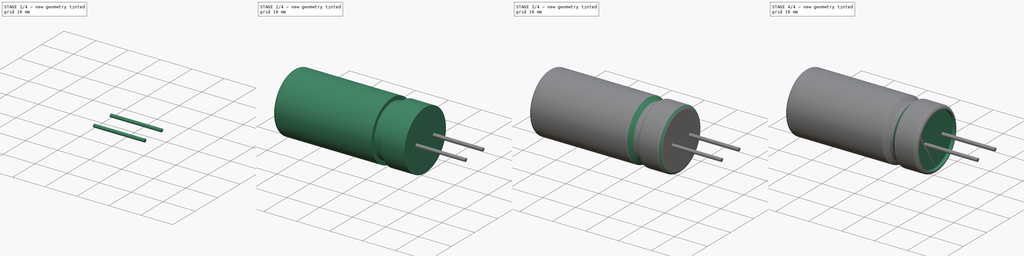
[diagram: build sequence overview — one tinted view per stage of 4, left to right]
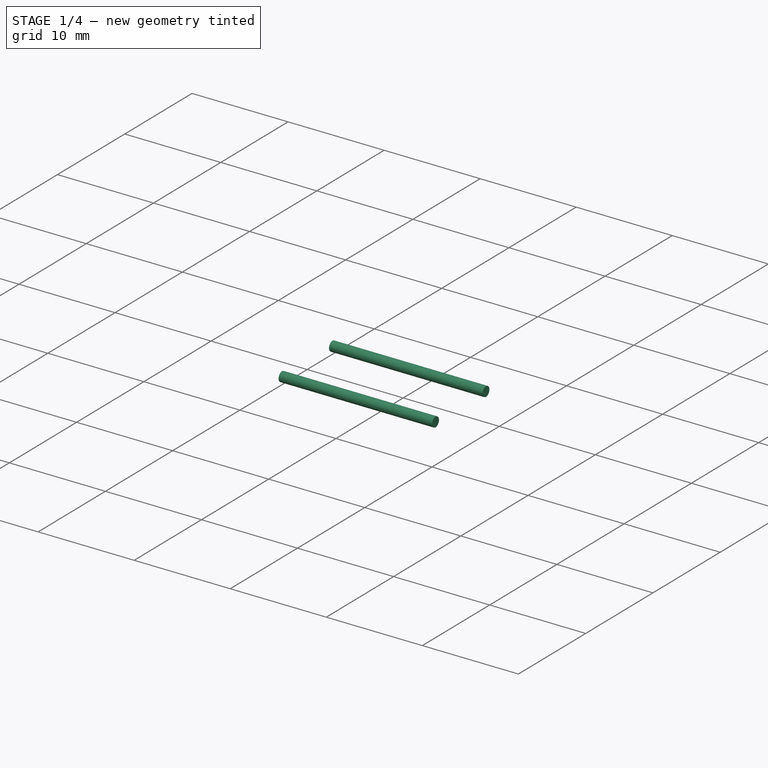
[diagram: stage 1 of 4 — iso view after this stage's code; geometry added in this stage tinted green]
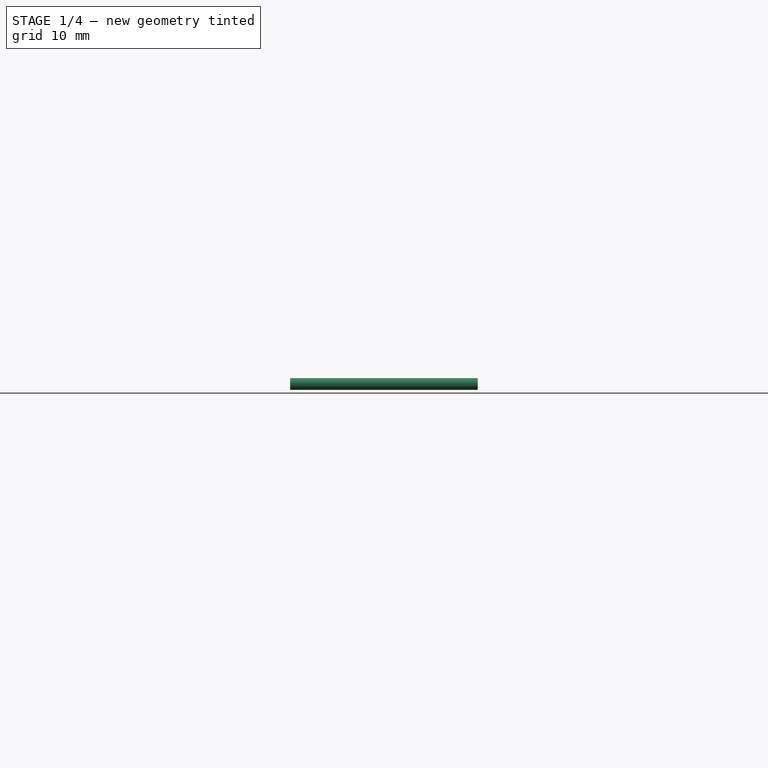
[diagram: stage 1 of 4 — front view after this stage's code; geometry added in this stage tinted green]
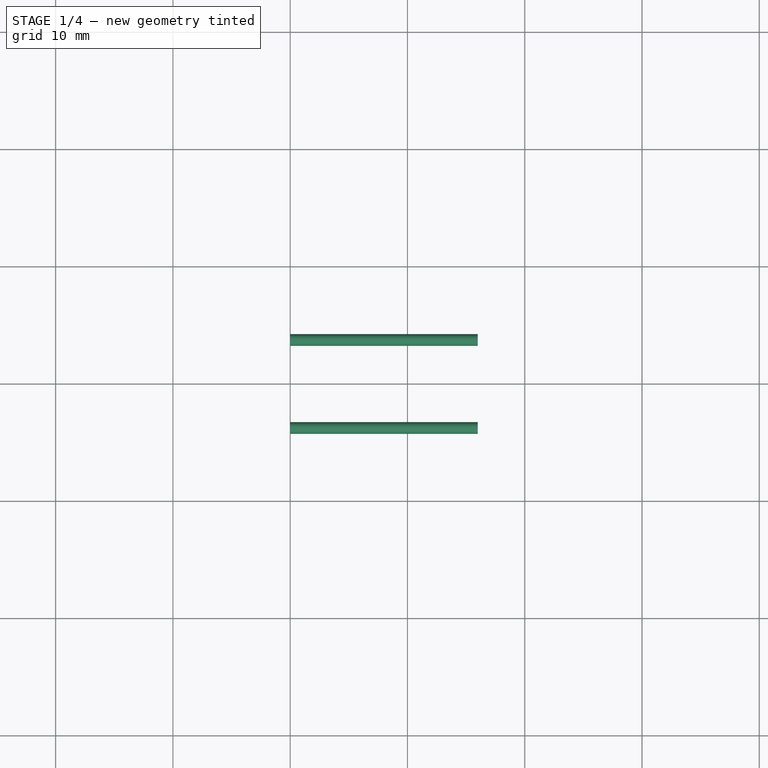
[diagram: stage 1 of 4 — top view after this stage's code; geometry added in this stage tinted green]
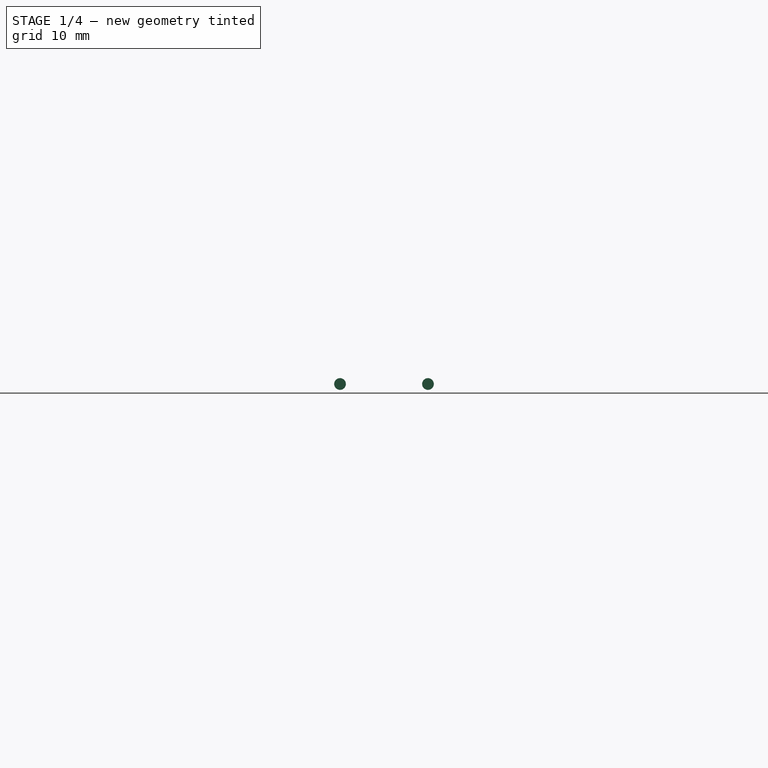
[diagram: stage 1 of 4 — right view after this stage's code; geometry added in this stage tinted green]
FCSTD DOCUMENT  (FreeCAD 1.0R39319 (Git))
Label: condesator(K50 –6 )
License: All rights reserved
LicenseURL: https://en.wikipedia.org/wiki/All_rights_reserved
objects: PartDesign::Fillet×3, PartDesign::Body×3, PartDesign::Chamfer×2, PartDesign::AdditiveCylinder×2, Sketcher::SketchObject×1, PartDesign::Revolution×1, PartDesign::Pocket×1
note: 32 computed .brp shape members not serialized (recipe doc carries the construction recipe); baked Part::Feature solids carry a one-line shape summary decoded from their .brp

FEATURE [PartDesign::Body] Body  label="Тіло"
  AllowCompound = false
  Group = -> [Sketch,Revolution,Fillet,Fillet001,Fillet002,Chamfer,Chamfer001,Pocket]
  Origin = -> Origin
  Tip = -> Pocket
FEATURE [PartDesign::AdditiveCylinder] Cylinder
  Angle = 360
  AttacherType = Attacher::AttachEngine3D
  AttachmentOffset = pos=(0,-3.75,0) rot=(0,0,1;0rad)
  AttachmentSupport = -> [Pocket]
  FirstAngle = 0
  Height = 16
  MapMode = 5
  Placement = pos=(40,3.75,0) rot=(0.707107,0,0.707107;3.14159rad)
  Radius = 0.5
  Refine = true
  SecondAngle = 0
  Suppressed = false
FEATURE [PartDesign::Body] Body001  label="Тіло001"
  AllowCompound = false
  Group = -> [Cylinder]
  Origin = -> Origin001
  Tip = -> Cylinder
FEATURE [PartDesign::AdditiveCylinder] Cylinder001
  Angle = 360
  AttacherType = Attacher::AttachEngine3D
  AttachmentOffset = pos=(0,3.75,0) rot=(0,0,1;0rad)
  AttachmentSupport = -> [Pocket]
  FirstAngle = 0
  Height = 16
  MapMode = 5
  Placement = pos=(40,-3.75,0) rot=(0.707107,0,0.707107;3.14159rad)
  Radius = 0.5
  Refine = true
  SecondAngle = 0
  Suppressed = false
FEATURE [PartDesign::Body] Body002  label="Тіло002"
  AllowCompound = false
  Group = -> [Cylinder001]
  Origin = -> Origin002
  Tip = -> Cylinder001
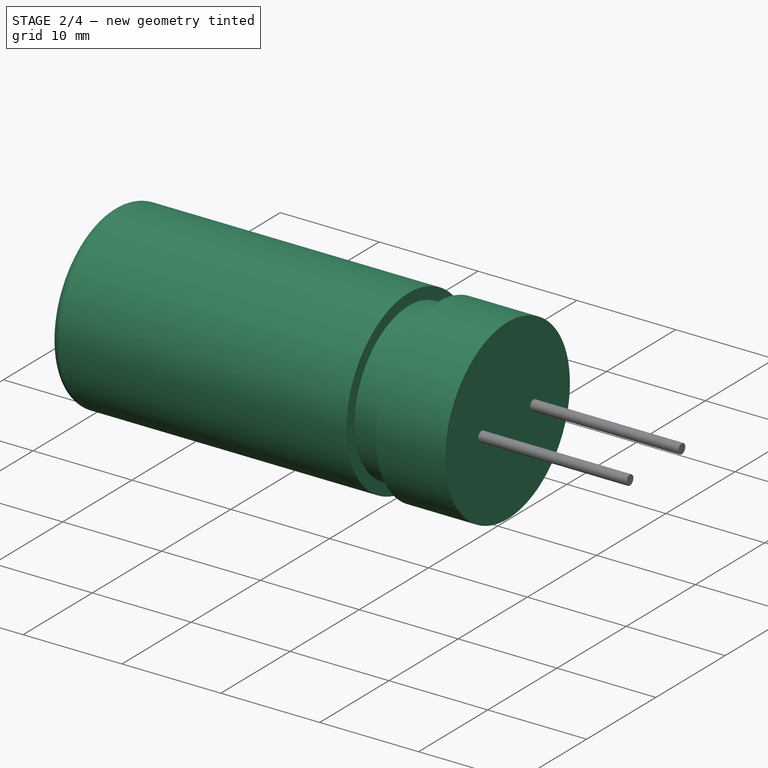
[diagram: stage 2 of 4 — iso view after this stage's code; geometry added in this stage tinted green]
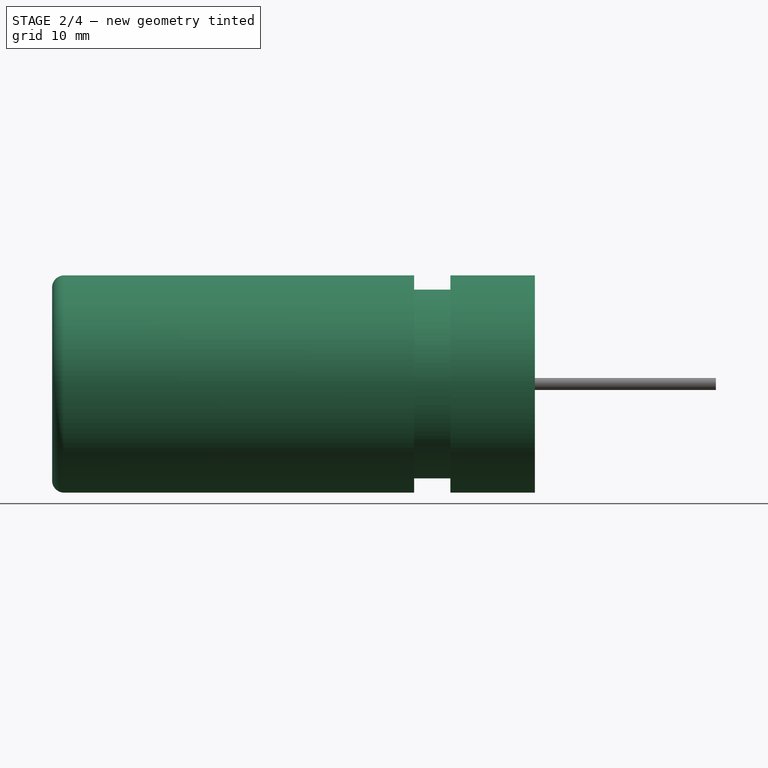
[diagram: stage 2 of 4 — front view after this stage's code; geometry added in this stage tinted green]
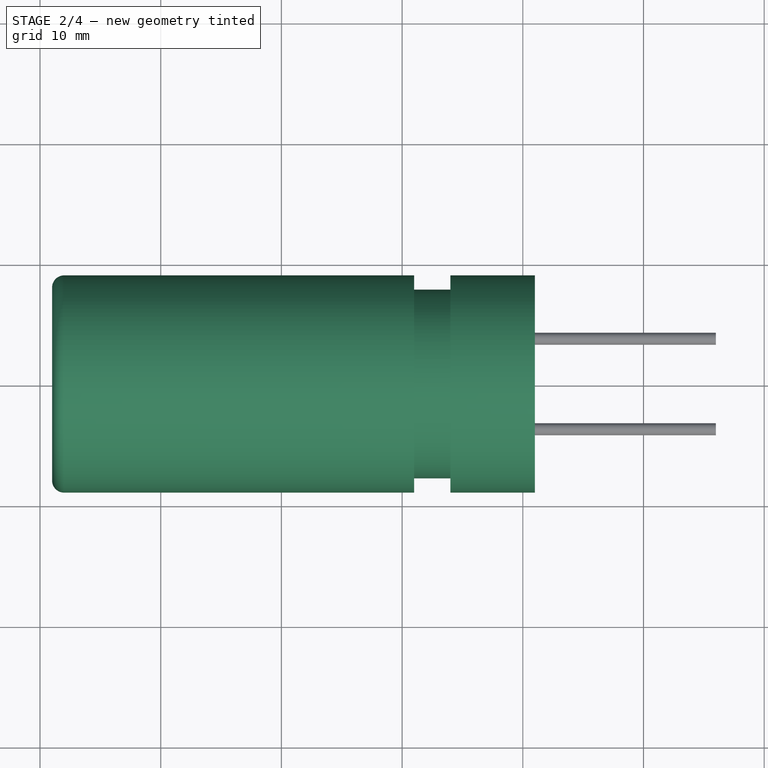
[diagram: stage 2 of 4 — top view after this stage's code; geometry added in this stage tinted green]
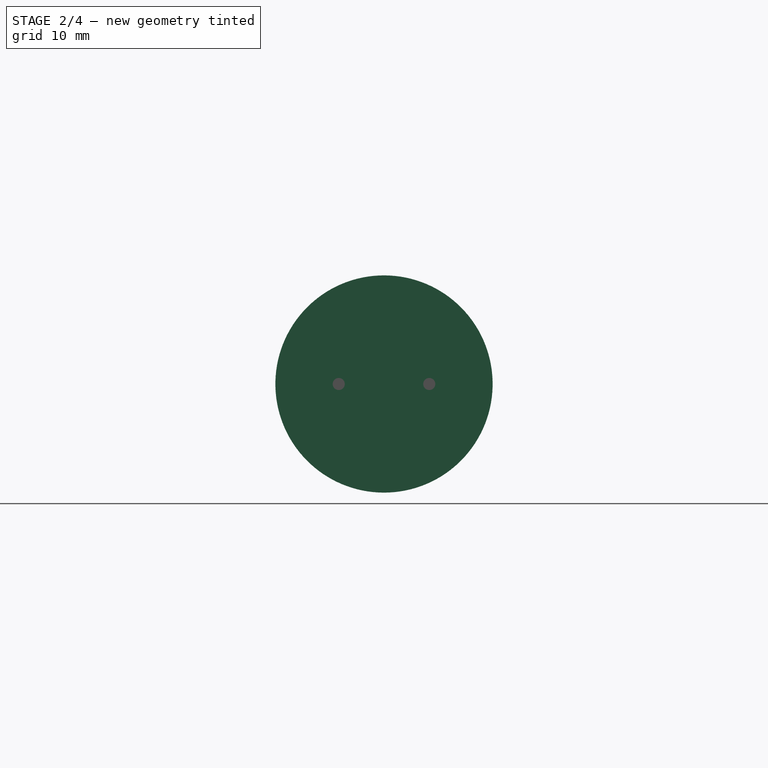
[diagram: stage 2 of 4 — right view after this stage's code; geometry added in this stage tinted green]
FEATURE [Sketcher::SketchObject] Sketch
  ArcFitTolerance = 1e-06
  AttachmentSupport = -> [XZ_Plane]
  FullyConstrained = false
  MakeInternals = false
  MapMode = 5
  Placement = pos=(0,0,0) rot=(1,0,0;1.5708rad)
  sketch-geometry (10):
    g0: LineSegment StartX=1 StartY=0 StartZ=0 EndX=1 EndY=9 EndZ=0
    g1: LineSegment StartX=1 StartY=0 StartZ=0 EndX=31 EndY=0 EndZ=0
    g2: LineSegment StartX=41 StartY=0 StartZ=0 EndX=34 EndY=0 EndZ=0
    g3: LineSegment StartX=31 StartY=0 StartZ=0 EndX=34 EndY=0 EndZ=0
    g4: LineSegment StartX=41 StartY=0 StartZ=0 EndX=41 EndY=9 EndZ=0
    g5: LineSegment StartX=34 StartY=9 StartZ=0 EndX=41 EndY=9 EndZ=0
    g6: LineSegment StartX=31 StartY=9 StartZ=0 EndX=1 EndY=9 EndZ=0
    g7: LineSegment StartX=31 StartY=7.82043 StartZ=0 EndX=34 EndY=7.82043 EndZ=0
    g8: LineSegment StartX=34 StartY=9 StartZ=0 EndX=34 EndY=7.82043 EndZ=0
    g9: LineSegment StartX=31 StartY=9 StartZ=0 EndX=31 EndY=7.82043 EndZ=0
  constraints (16):
    c: Distance(g0) = 9
    c: Vertical(g0)
    c: Distance(g1) = 30
    c: Distance(g2) = 7
    c: Coincident(g3,g2)
    c: Distance(g4) = 9
    c: Vertical(g4)
    c: Coincident(g5,g4)
    c: Coincident(g6,g0)
    c: Horizontal(g7)
    c: Coincident(g8,g5)
    c: Coincident(g8,g7)
    c: Vertical(g8)
    c: Coincident(g9,g6)
    c: Coincident(g9,g7)
    c: Vertical(g9)
FEATURE [PartDesign::Revolution] Revolution
  Angle = 360
  Angle2 = 60
  Axis = (1,0,0)
  Base = (0,0,0)
  Placement = pos=(0,0,0) rot=(1,0,0;1.5708rad)
  Profile = -> Sketch
  ReferenceAxis = -> X_Axis
  Refine = true
  Suppressed = false
  Type = 0
FEATURE [PartDesign::Fillet] Fillet
  Base = -> Revolution [Edge1]
  BaseFeature = -> Revolution
  Placement = pos=(0,0,0) rot=(1,0,0;1.5708rad)
  Radius = 1
  Refine = true
  SupportTransform = false
  Suppressed = false
  UseAllEdges = false
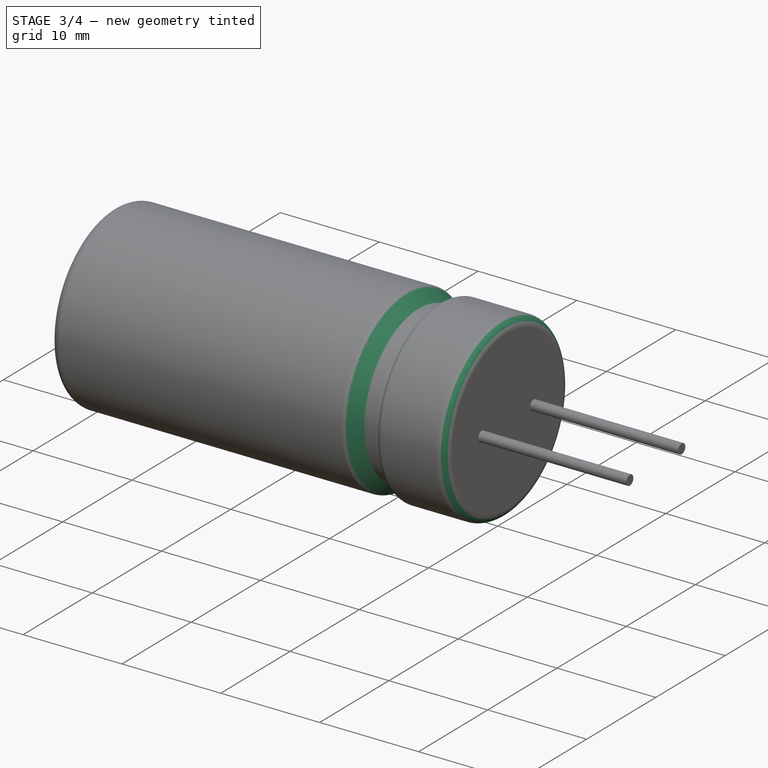
[diagram: stage 3 of 4 — iso view after this stage's code; geometry added in this stage tinted green]
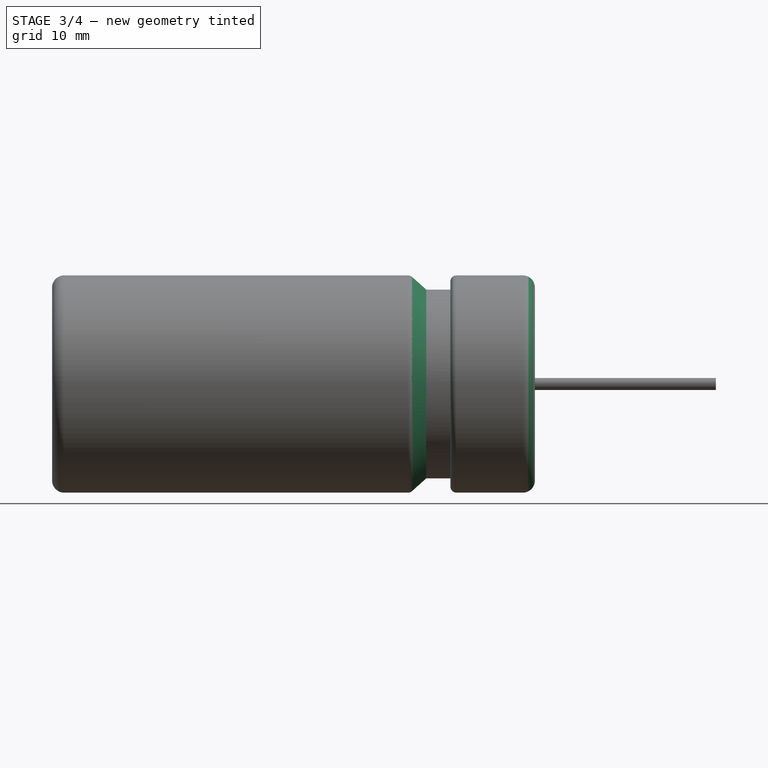
[diagram: stage 3 of 4 — front view after this stage's code; geometry added in this stage tinted green]
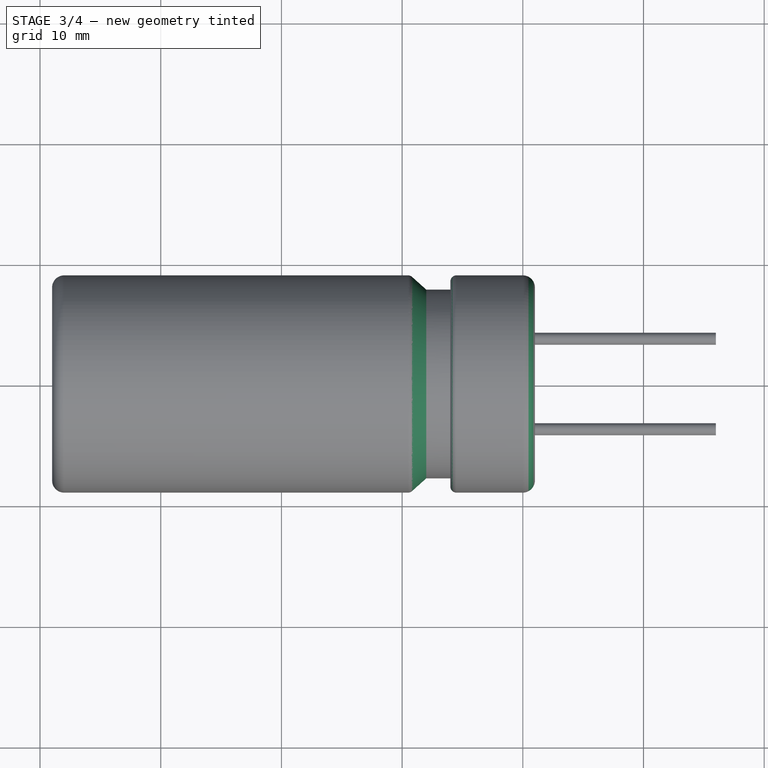
[diagram: stage 3 of 4 — top view after this stage's code; geometry added in this stage tinted green]
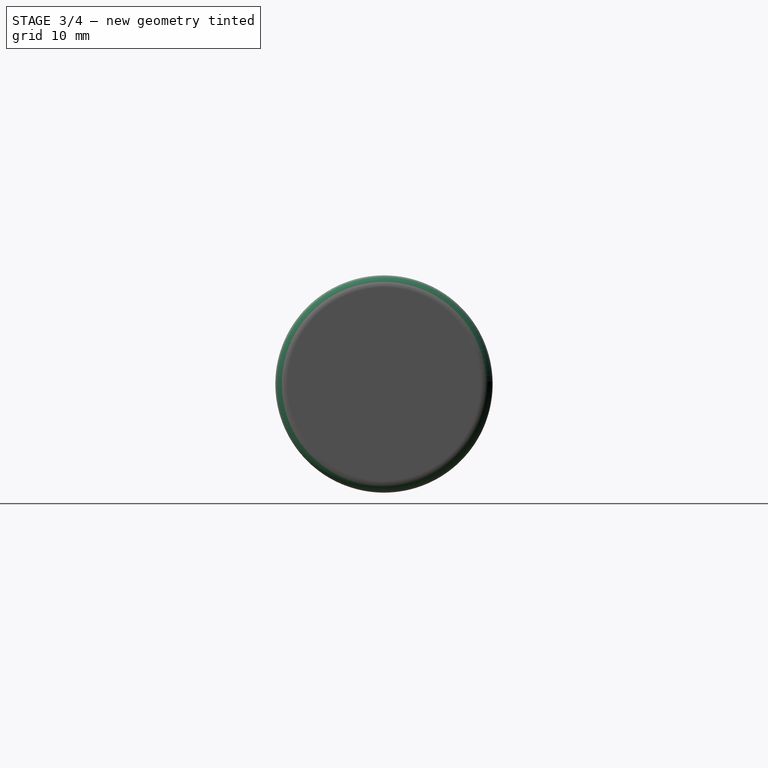
[diagram: stage 3 of 4 — right view after this stage's code; geometry added in this stage tinted green]
FEATURE [PartDesign::Fillet] Fillet001
  Base = -> Fillet [Edge10]
  BaseFeature = -> Fillet
  Placement = pos=(0,0,0) rot=(1,0,0;1.5708rad)
  Radius = 1
  Refine = true
  SupportTransform = false
  Suppressed = false
  UseAllEdges = false
FEATURE [PartDesign::Fillet] Fillet002
  Base = -> Fillet001 [Edge3,Edge9]
  BaseFeature = -> Fillet001
  Placement = pos=(0,0,0) rot=(1,0,0;1.5708rad)
  Radius = 0.5
  Refine = true
  SupportTransform = false
  Suppressed = false
  UseAllEdges = false
FEATURE [PartDesign::Chamfer] Chamfer
  Angle = 45
  Base = -> Fillet002 [Edge9]
  BaseFeature = -> Fillet002
  ChamferType = 0
  FlipDirection = false
  Placement = pos=(0,0,0) rot=(1,0,0;1.5708rad)
  Refine = true
  Size = 1
  Size2 = 1
  SupportTransform = false
  Suppressed = false
  UseAllEdges = false
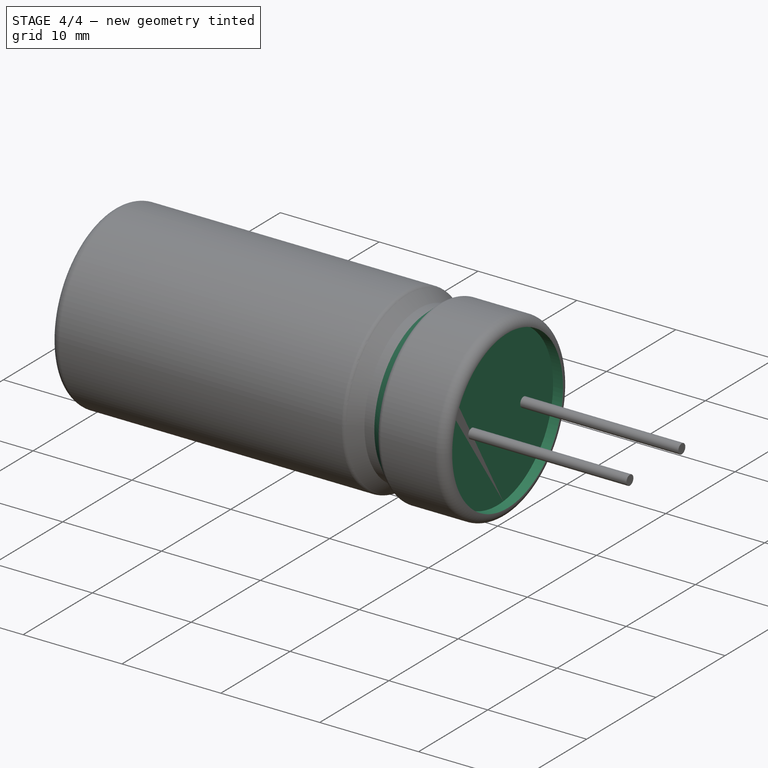
[diagram: stage 4 of 4 — iso view after this stage's code; geometry added in this stage tinted green]
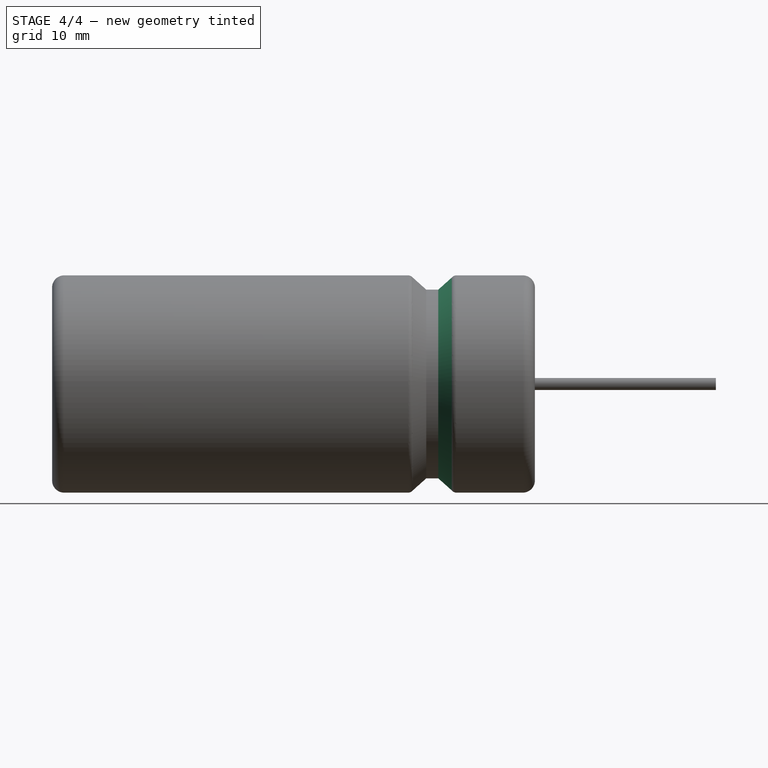
[diagram: stage 4 of 4 — front view after this stage's code; geometry added in this stage tinted green]
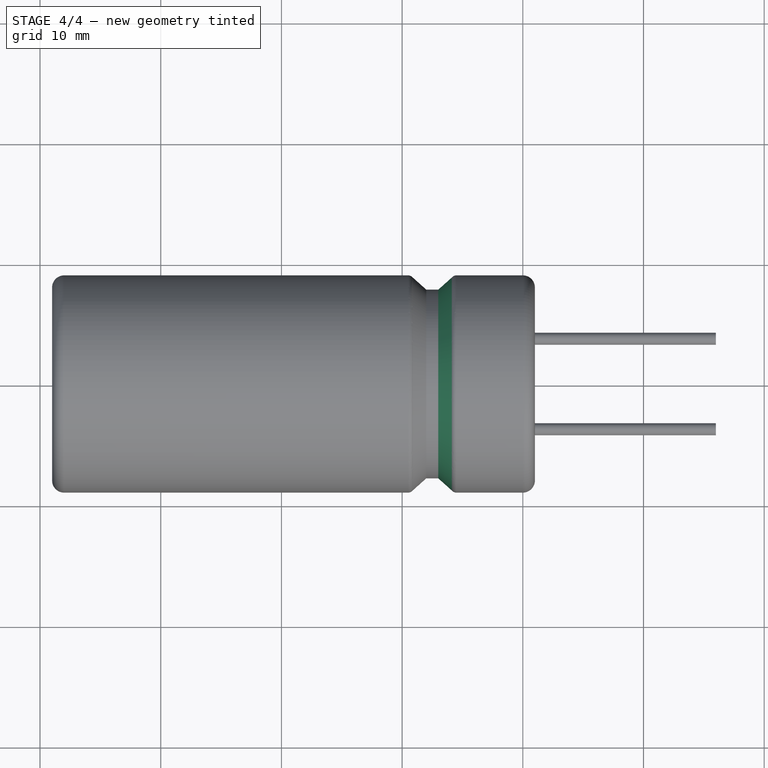
[diagram: stage 4 of 4 — top view after this stage's code; geometry added in this stage tinted green]
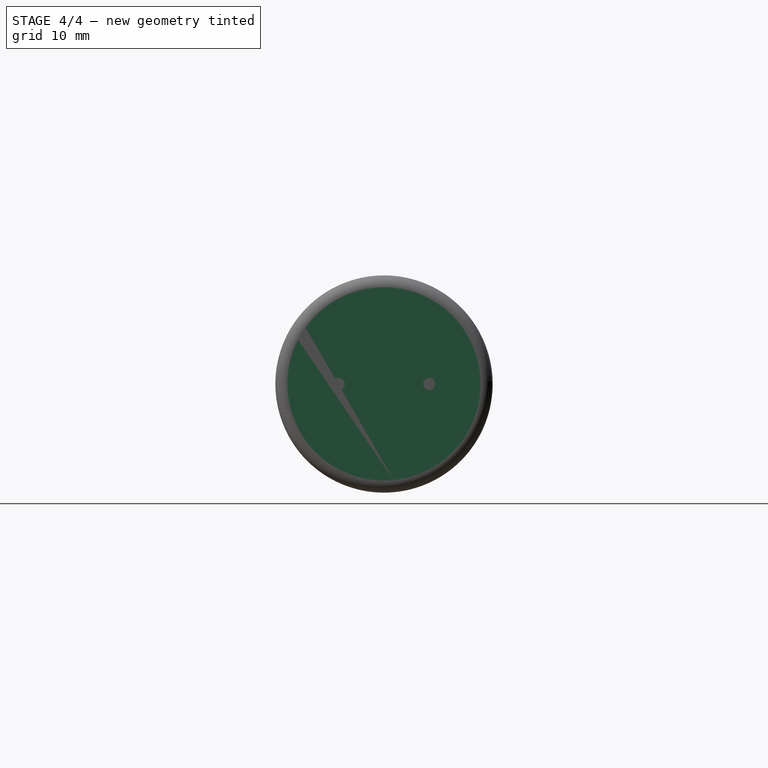
[diagram: stage 4 of 4 — right view after this stage's code; geometry added in this stage tinted green]
FEATURE [PartDesign::Chamfer] Chamfer001
  Angle = 45
  Base = -> Chamfer [Edge3]
  BaseFeature = -> Chamfer
  ChamferType = 0
  FlipDirection = false
  Placement = pos=(0,0,0) rot=(1,0,0;1.5708rad)
  Refine = true
  Size = 1
  Size2 = 1
  SupportTransform = false
  Suppressed = false
  UseAllEdges = false
FEATURE [PartDesign::Pocket] Pocket
  BaseFeature = -> Chamfer001
  Direction = (-1,0,0)
  Length = 1
  Length2 = 5
  Placement = pos=(0,0,0) rot=(1,0,0;1.5708rad)
  Profile = -> Chamfer001 [Face10]
  Refine = true
  Suppressed = false
  Type = 0
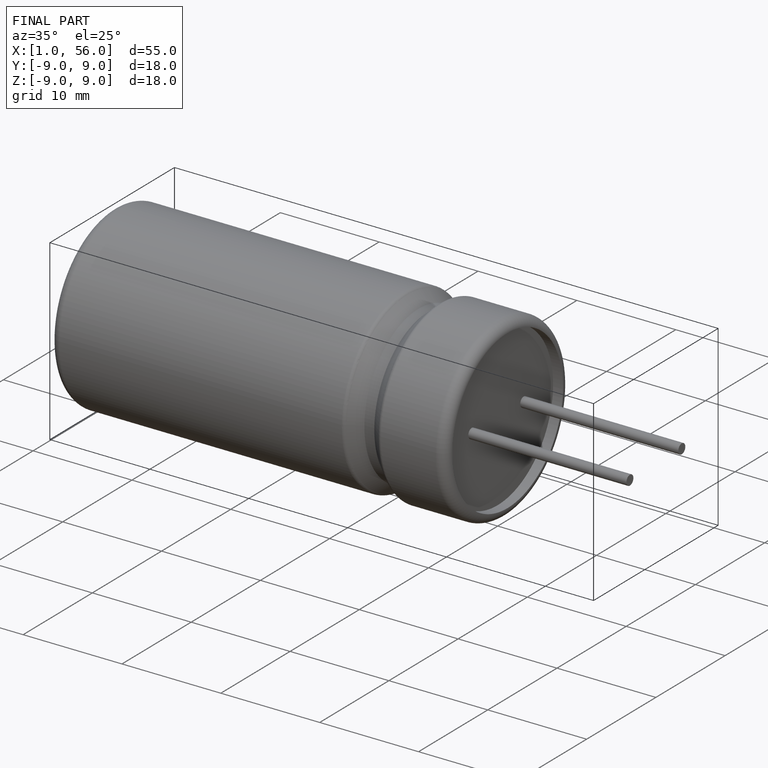
[diagram: finished part — iso view with bounding-box wireframe]
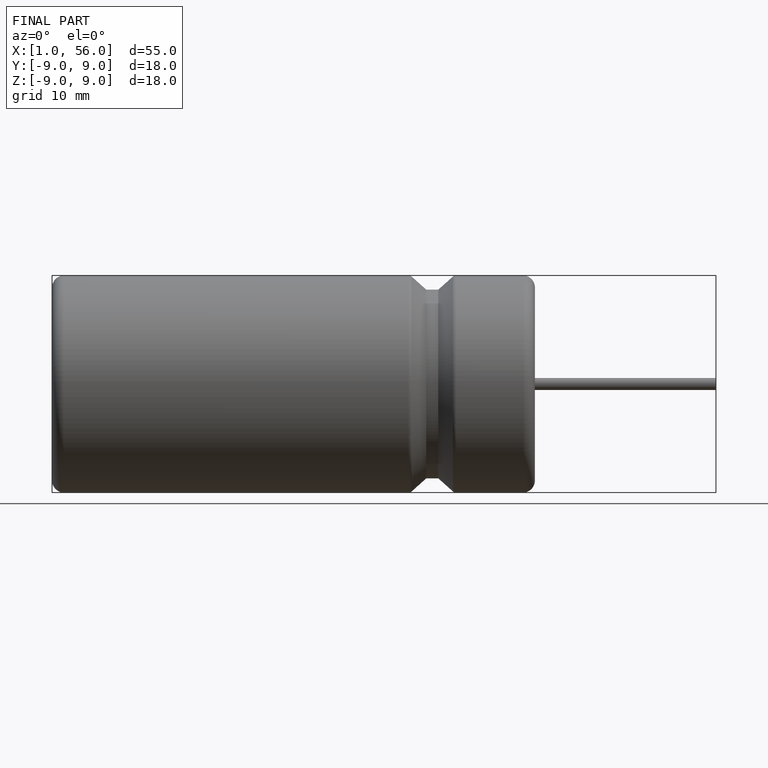
[diagram: finished part — front view with bounding-box wireframe]
